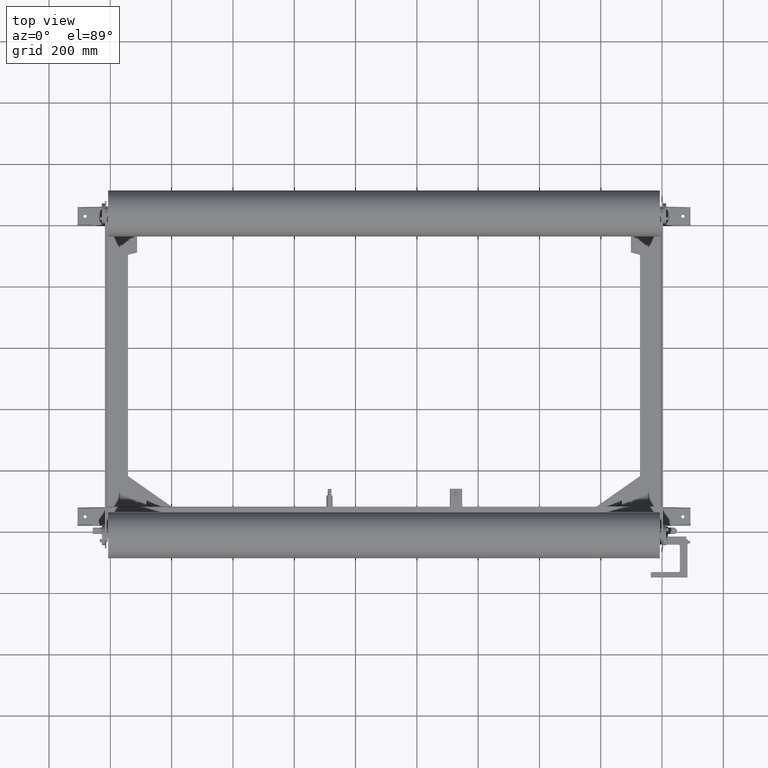
[diagram: clean part render]
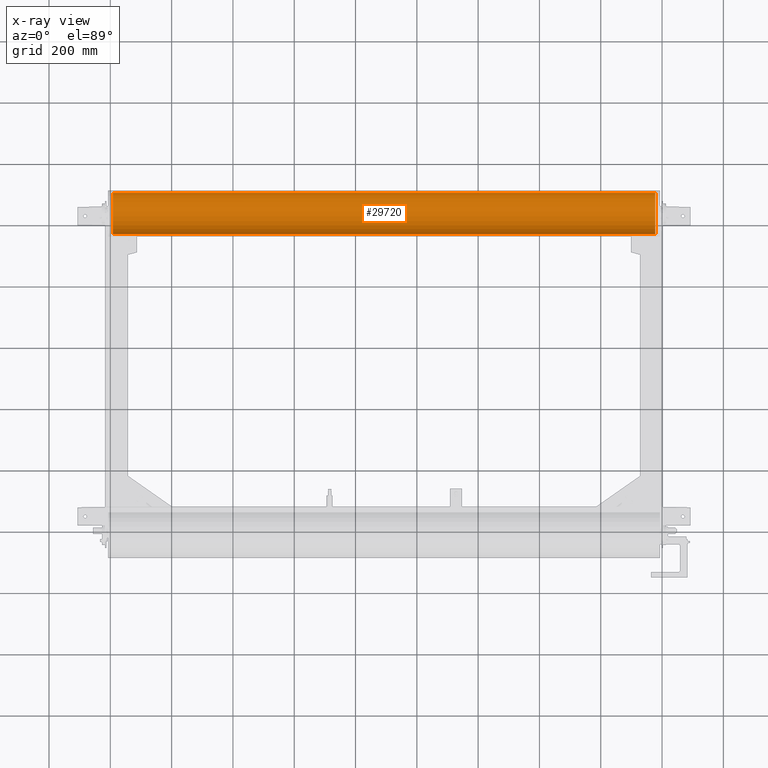
[diagram: x-ray — body ghosted, one internal face saturated and labeled with its STEP entity id]
A machine part, top view, then the same camera in x-ray: the body is ghosted and one INTERNAL B-rep face — a face not visible from any outside direction — is saturated and labeled: STEP entity #29720.
In plain terms, the highlighted cylindrical surface (edge-blend (fillet) strip) has radius 67 mm, axis along (1, -0, 0).
Its self-contained STEP definition (entity closure, byte-faithful):
#29480=CARTESIAN_POINT('',(1485.0,31.000000000000085,0.0));
#29481=VERTEX_POINT('',#29480);
#29482=CARTESIAN_POINT('',(-285.000000000000110,30.999999999999915,0.0));
#29483=VERTEX_POINT('',#29482);
#29484=CARTESIAN_POINT('',(1485.0,31.000000000000085,0.0));
#29485=DIRECTION('',(-1.0,0.0,0.0));
#29486=VECTOR('',#29485,1770.0);
#29487=LINE('',#29484,#29486);
#29488=EDGE_CURVE('',#29481,#29483,#29487,.T.);
#29490=CARTESIAN_POINT('',(1485.0,-102.999999999999830,-8.205134E-015));
#29491=VERTEX_POINT('',#29490);
#29499=CARTESIAN_POINT('',(-285.000000000000110,-102.999999999999830,-8.205134E-015));
#29500=VERTEX_POINT('',#29499);
#29501=CARTESIAN_POINT('',(1485.0,-102.999999999999830,-8.205134E-015));
#29502=DIRECTION('',(-1.0,0.0,0.0));
#29503=VECTOR('',#29502,1770.0);
#29504=LINE('',#29501,#29503);
#29505=EDGE_CURVE('',#29491,#29500,#29504,.T.);
#29693=CARTESIAN_POINT('',(1485.0,-35.999999999999915,0.0));
#29694=DIRECTION('',(1.0,0.0,0.0));
#29695=DIRECTION('',(0.0,1.0,0.0));
#29696=AXIS2_PLACEMENT_3D('',#29693,#29694,#29695);
#29697=CIRCLE('',#29696,67.0);
#29698=EDGE_CURVE('',#29491,#29481,#29697,.T.);
#29703=CARTESIAN_POINT('',(600.0,-35.999999999999915,0.0));
#29704=DIRECTION('',(1.0,0.0,0.0));
#29705=DIRECTION('',(0.0,1.0,0.0));
#29706=AXIS2_PLACEMENT_3D('',#29703,#29704,#29705);
#29707=CYLINDRICAL_SURFACE('',#29706,66.999999999999915);
#29708=ORIENTED_EDGE('',*,*,#29488,.T.);
#29709=CARTESIAN_POINT('',(-285.000000000000110,-35.999999999999915,0.0));
#29710=DIRECTION('',(1.0,0.0,0.0));
#29711=DIRECTION('',(0.0,1.0,0.0));
#29712=AXIS2_PLACEMENT_3D('',#29709,#29710,#29711);
#29713=CIRCLE('',#29712,66.999999999999829);
#29714=EDGE_CURVE('',#29500,#29483,#29713,.T.);
#29715=ORIENTED_EDGE('',*,*,#29714,.F.);
#29716=ORIENTED_EDGE('',*,*,#29505,.F.);
#29717=ORIENTED_EDGE('',*,*,#29698,.T.);
#29718=EDGE_LOOP('',(#29708,#29715,#29716,#29717));
#29719=FACE_OUTER_BOUND('',#29718,.T.);
#29720=ADVANCED_FACE('',(#29719),#29707,.F.);